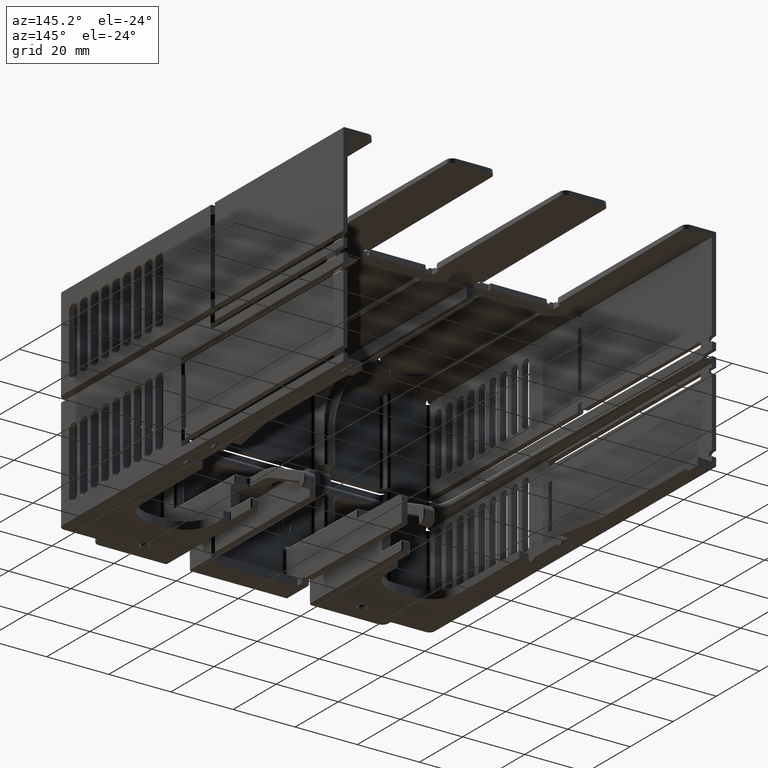
[diagram: clean part render]
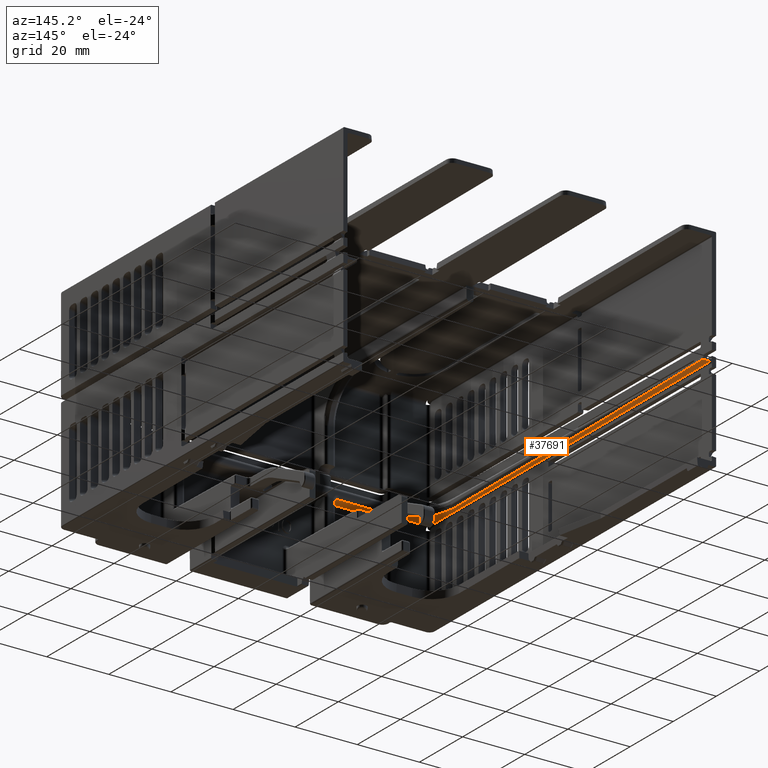
[diagram: same view with one face highlighted and labeled with its STEP entity id]
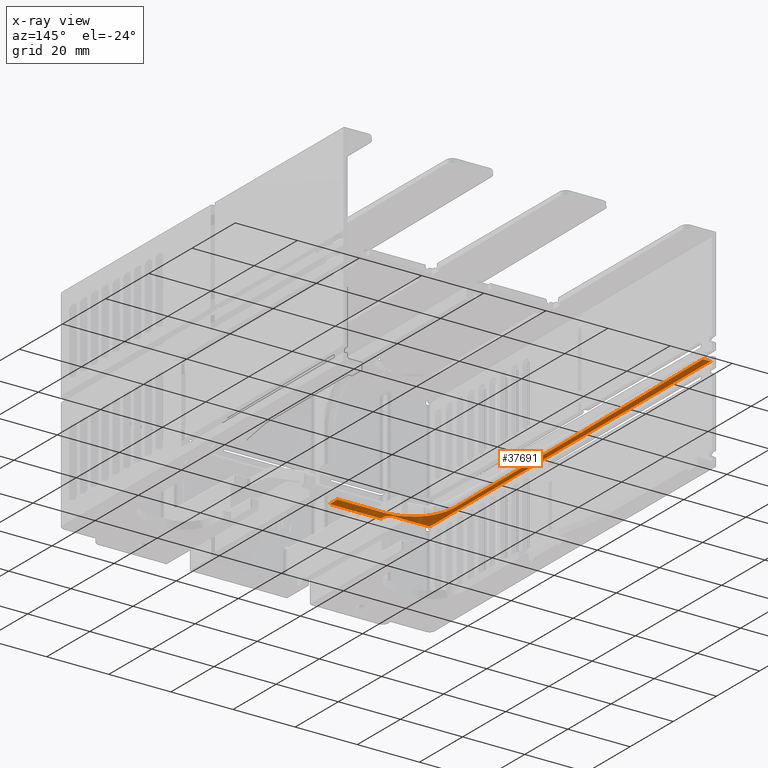
[diagram: x-ray of the same camera — body ghosted, the highlighted face saturated]
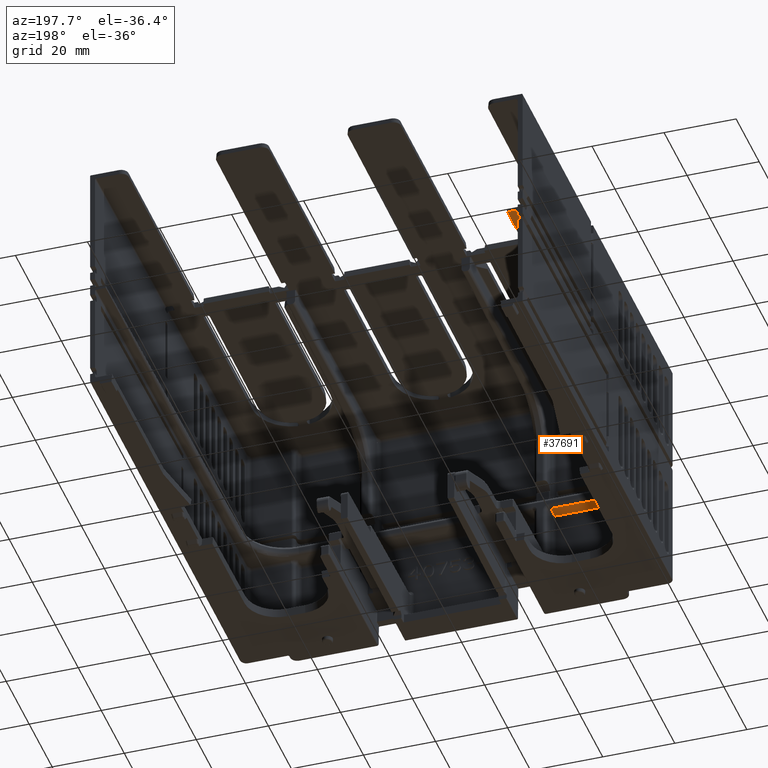
[diagram: same view with one face highlighted and labeled with its STEP entity id]
A machine part, auxiliary view. The second image highlights one B-rep face of the part: STEP entity #37691.
The next image is the same camera in x-ray: the body ghosted, the highlighted face saturated — about 17% of this face is hidden behind the body in this view.
A second angle (auxiliary view) of the same face is appended — the face is thin or edge-on in the first view.
In plain terms, the highlighted planar face has unit normal (0, -0.0087, 1).
Its self-contained STEP definition (entity closure, byte-faithful):
#7184=CARTESIAN_POINT('',(-5.565177389007E1,1.989528471209E1,
-8.481936203955E-1));
#7185=CARTESIAN_POINT('',(-5.598540810909E1,5.826297636723E1,
-5.133639536391E-1));
#7186=CARTESIAN_POINT('',(-5.602151177763E1,9.663334271142E1,
-1.785108154776E-1));
#7187=CARTESIAN_POINT('',(-5.575628669776E1,1.349999999861E2,
1.563099823257E-1));
#7189=DIRECTION('',(-1.E0,5.770369749707E-9,-7.455691517681E-11));
#7190=VECTOR('',#7189,2.400042323108E0);
#7191=CARTESIAN_POINT('',(-5.575628669776E1,1.349999999861E2,
1.563099823257E-1));
#7192=LINE('',#7191,#7190);
#7193=DIRECTION('',(8.726203244927E-3,-9.999238504776E-1,-8.726203243962E-3));
#7194=VECTOR('',#7193,1.280185321973E2);
#7195=CARTESIAN_POINT('',(-5.815632902087E1,1.35E2,1.563099821468E-1));
#7196=LINE('',#7195,#7194);
#7197=CARTESIAN_POINT('',(-5.703921328980E1,6.991216352747E0,
-9.608057488008E-1));
#7198=CARTESIAN_POINT('',(-5.703707853742E1,6.746597953537E0,
-9.629405012299E-1));
#7199=CARTESIAN_POINT('',(-5.677923332856E1,6.502829081554E0,
-9.650678398164E-1));
#7200=CARTESIAN_POINT('',(-5.653486939278E1,6.491273464501E0,
-9.651686841587E-1));
#7202=DIRECTION('',(7.640132506922E-3,-9.999327723888E-1,-8.722332154448E-3));
#7203=VECTOR('',#7202,1.017521549535E0);
#7204=CARTESIAN_POINT('',(-4.351757268619E1,4.508726608494E0,
-9.824741266033E-1));
#7205=LINE('',#7204,#7203);
#7206=DIRECTION('',(1.E0,-5.679663066995E-14,6.193578362137E-12));
#7207=VECTOR('',#7206,1.649795457461E1);
#7208=CARTESIAN_POINT('',(-4.350979868672E1,3.491273464502E0,
-9.913492875326E-1));
#7209=LINE('',#7208,#7207);
#7210=DIRECTION('',(9.999999999997E-1,7.951460953169E-7,5.127933223586E-8));
#7211=VECTOR('',#7210,1.567111548177E1);
#7212=CARTESIAN_POINT('',(-4.265226324571E1,7.008714046636E0,
-9.606530092472E-1));
#7213=LINE('',#7212,#7211);
#7236=DIRECTION('',(-8.726203369236E-3,-9.999238486554E-1,-8.726411920389E-3));
#7237=VECTOR('',#7236,3.517720922139E0);
#7238=CARTESIAN_POINT('',(-2.698114776395E1,7.008726507462E0,
-9.606522056429E-1));
#7239=LINE('',#7238,#7237);
#7310=CARTESIAN_POINT('',(-4.351757268619E1,4.508726608494E0,
-9.824741266033E-1));
#7311=CARTESIAN_POINT('',(-4.352072015156E1,4.722626985230E0,
-9.806074462951E-1));
#7312=CARTESIAN_POINT('',(-4.358726791702E1,5.127906594105E0,
-9.770647245922E-1));
#7313=CARTESIAN_POINT('',(-4.387924905659E1,5.695541133649E0,
-9.721134947731E-1));
#7314=CARTESIAN_POINT('',(-4.432914427876E1,6.141057528740E0,
-9.682246152576E-1));
#7315=CARTESIAN_POINT('',(-4.489900057731E1,6.427247101114E0,
-9.657283022832E-1));
#7316=CARTESIAN_POINT('',(-4.530408703743E1,6.490055930389E0,
-9.651775209272E-1));
#7317=CARTESIAN_POINT('',(-4.551749181467E1,6.491275808107E0,
-9.651668752156E-1));
#17342=DIRECTION('',(-1.E0,-2.127190745433E-7,-1.641899876452E-7));
#17343=VECTOR('',#17342,1.101737757811E1);
#17344=CARTESIAN_POINT('',(-4.551749181467E1,6.491275808107E0,
-9.651668752156E-1));
#17345=LINE('',#17344,#17343);
#19427=CARTESIAN_POINT('',(-5.565177389007E1,1.989528471209E1,
-8.481936203955E-1));
#19428=CARTESIAN_POINT('',(-5.564276341186E1,1.903880988555E1,
-8.556679629728E-1));
#19429=CARTESIAN_POINT('',(-5.546472200275E1,1.736396456469E1,
-8.702841602069E-1));
#19430=CARTESIAN_POINT('',(-5.470642181460E1,1.492271272169E1,
-8.915886247516E-1));
#19431=CARTESIAN_POINT('',(-5.349118967718E1,1.268241820712E1,
-9.111393836015E-1));
#19432=CARTESIAN_POINT('',(-5.186381369508E1,1.071831467920E1,
-9.282798537148E-1));
#19433=CARTESIAN_POINT('',(-4.988575990770E1,9.107656943709E0,
-9.423358528284E-1));
#19434=CARTESIAN_POINT('',(-4.763471970781E1,7.911409307520E0,
-9.527753414977E-1));
#19435=CARTESIAN_POINT('',(-4.518625889628E1,7.173823994301E0,
-9.592121741977E-1));
#19436=CARTESIAN_POINT('',(-4.350921147223E1,7.010289434070E0,
-9.606392610494E-1));
#19437=CARTESIAN_POINT('',(-4.265226324571E1,7.008714046636E0,
-9.606530092472E-1));
#22046=CARTESIAN_POINT('',(-2.701184411211E1,3.491273464502E0,
-9.913492875308E-1));
#22047=VERTEX_POINT('',#22046);
#22048=CARTESIAN_POINT('',(-4.350979868672E1,3.491273464502E0,
-9.913492875326E-1));
#22049=VERTEX_POINT('',#22048);
#23863=CARTESIAN_POINT('',(-4.351757268619E1,4.508726608494E0,
-9.824741266033E-1));
#23864=VERTEX_POINT('',#23863);
#23885=CARTESIAN_POINT('',(-5.575628669776E1,1.349999999861E2,
1.563099823257E-1));
#23886=CARTESIAN_POINT('',(-5.815632902087E1,1.35E2,1.563099821468E-1));
#23887=VERTEX_POINT('',#23885);
#23888=VERTEX_POINT('',#23886);
#23889=VERTEX_POINT('',#7197);
#23890=VERTEX_POINT('',#7200);
#24337=VERTEX_POINT('',#7184);
#24339=VERTEX_POINT('',#19437);
#24341=CARTESIAN_POINT('',(-2.698114776395E1,7.008726507462E0,
-9.606522056429E-1));
#24342=VERTEX_POINT('',#24341);
#26093=CARTESIAN_POINT('',(-4.551749181401E1,6.491273464502E0,
-9.651686841588E-1));
#26094=VERTEX_POINT('',#26093);
#37663=CARTESIAN_POINT('',(-4.256873839247E1,6.924563673225E1,
-4.175196526276E-1));
#37664=DIRECTION('',(0.E0,-8.726535498375E-3,9.999619230642E-1));
#37665=DIRECTION('',(-1.E0,0.E0,0.E0));
#37666=AXIS2_PLACEMENT_3D('',#37663,#37664,#37665);
#37667=PLANE('',#37666);
#37669=ORIENTED_EDGE('',*,*,#37668,.F.);
#37671=ORIENTED_EDGE('',*,*,#37670,.F.);
#37672=ORIENTED_EDGE('',*,*,#37653,.T.);
#37674=ORIENTED_EDGE('',*,*,#37673,.T.);
#37676=ORIENTED_EDGE('',*,*,#37675,.T.);
#37678=ORIENTED_EDGE('',*,*,#37677,.T.);
#37680=ORIENTED_EDGE('',*,*,#37679,.F.);
#37682=ORIENTED_EDGE('',*,*,#37681,.F.);
#37684=ORIENTED_EDGE('',*,*,#37683,.T.);
#37686=ORIENTED_EDGE('',*,*,#37685,.T.);
#37688=ORIENTED_EDGE('',*,*,#37687,.F.);
#37689=EDGE_LOOP('',(#37669,#37671,#37672,#37674,#37676,#37678,#37680,#37682,
#37684,#37686,#37688));
#37690=FACE_OUTER_BOUND('',#37689,.F.);
#37691=ADVANCED_FACE('',(#37690),#37667,.F.);
#7188=B_SPLINE_CURVE_WITH_KNOTS('',3,(#7184,#7185,#7186,#7187),.UNSPECIFIED.,
.F.,.F.,(4,4),(0.E0,1.E0),.UNSPECIFIED.);
#7201=B_SPLINE_CURVE_WITH_KNOTS('',3,(#7197,#7198,#7199,#7200),.UNSPECIFIED.,
.F.,.F.,(4,4),(0.E0,1.E0),.UNSPECIFIED.);
#7318=B_SPLINE_CURVE_WITH_KNOTS('',3,(#7310,#7311,#7312,#7313,#7314,#7315,#7316,
#7317),.UNSPECIFIED.,.F.,.F.,(4,1,1,1,1,4),(0.E0,2.E-1,4.E-1,6.E-1,8.E-1,1.E0),
.UNSPECIFIED.);
#19438=B_SPLINE_CURVE_WITH_KNOTS('',3,(#19427,#19428,#19429,#19430,#19431,
#19432,#19433,#19434,#19435,#19436,#19437),.UNSPECIFIED.,.F.,.F.,(4,1,1,1,1,1,1,
1,4),(0.E0,1.25E-1,2.5E-1,3.75E-1,5.E-1,6.25E-1,7.5E-1,8.75E-1,1.E0),
.UNSPECIFIED.);
#37653=EDGE_CURVE('',#24337,#23887,#7188,.T.);
#37668=EDGE_CURVE('',#24339,#24342,#7213,.T.);
#37670=EDGE_CURVE('',#24337,#24339,#19438,.T.);
#37673=EDGE_CURVE('',#23887,#23888,#7192,.T.);
#37675=EDGE_CURVE('',#23888,#23889,#7196,.T.);
#37677=EDGE_CURVE('',#23889,#23890,#7201,.T.);
#37679=EDGE_CURVE('',#26094,#23890,#17345,.T.);
#37681=EDGE_CURVE('',#23864,#26094,#7318,.T.);
#37683=EDGE_CURVE('',#23864,#22049,#7205,.T.);
#37685=EDGE_CURVE('',#22049,#22047,#7209,.T.);
#37687=EDGE_CURVE('',#24342,#22047,#7239,.T.);